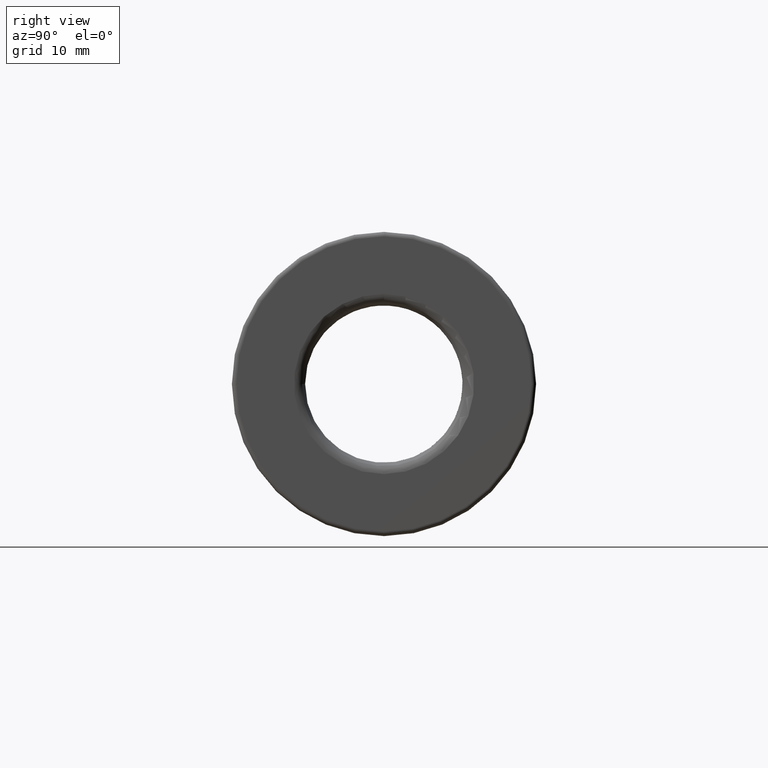
[diagram: clean part render]
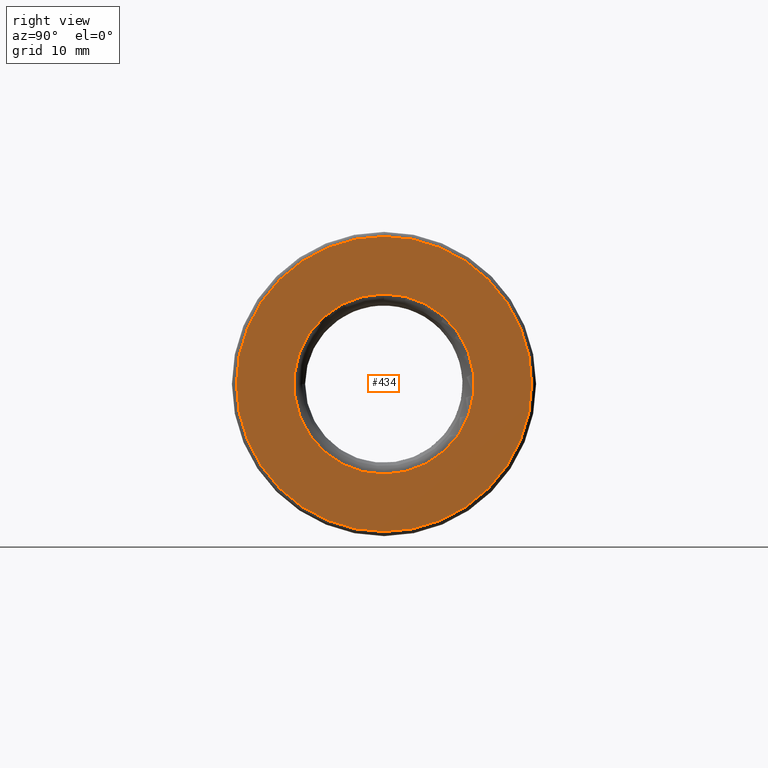
[diagram: same view with one face highlighted and labeled with its STEP entity id]
A machine part, right view. The second image highlights one B-rep face of the part: STEP entity #434.
In plain terms, the highlighted planar face has unit normal (1, 0, 0).
Its self-contained STEP definition (entity closure, byte-faithful):
#17=FACE_BOUND('',#84,.T.);
#21=PLANE('',#508);
#52=FACE_OUTER_BOUND('',#83,.T.);
#83=EDGE_LOOP('',(#340));
#84=EDGE_LOOP('',(#341));
#156=CIRCLE('',#506,13.1);
#158=CIRCLE('',#509,8.00000000000099);
#200=VERTEX_POINT('',#777);
#201=VERTEX_POINT('',#781);
#248=EDGE_CURVE('',#200,#200,#156,.T.);
#250=EDGE_CURVE('',#201,#201,#158,.T.);
#340=ORIENTED_EDGE('',*,*,#248,.T.);
#341=ORIENTED_EDGE('',*,*,#250,.F.);
#434=ADVANCED_FACE('',(#52,#17),#21,.T.);
#506=AXIS2_PLACEMENT_3D('',#778,#622,#623);
#508=AXIS2_PLACEMENT_3D('',#780,#626,#627);
#509=AXIS2_PLACEMENT_3D('',#782,#628,#629);
#622=DIRECTION('center_axis',(1.,0.,0.));
#623=DIRECTION('ref_axis',(0.,0.,-1.));
#626=DIRECTION('center_axis',(1.,0.,0.));
#627=DIRECTION('ref_axis',(0.,0.,-1.));
#628=DIRECTION('center_axis',(1.,0.,0.));
#629=DIRECTION('ref_axis',(0.,0.,-1.));
#777=CARTESIAN_POINT('',(-0.0373444376471976,-1.60428730688303E-15,13.1));
#778=CARTESIAN_POINT('Origin',(-0.0373444376471976,0.,0.));
#780=CARTESIAN_POINT('Origin',(-0.0373444376472065,8.00000000000099,0.));
#781=CARTESIAN_POINT('',(-0.037344437647433,-9.79717439318004E-16,8.00000000000099));
#782=CARTESIAN_POINT('Origin',(-0.037344437647433,0.,0.));